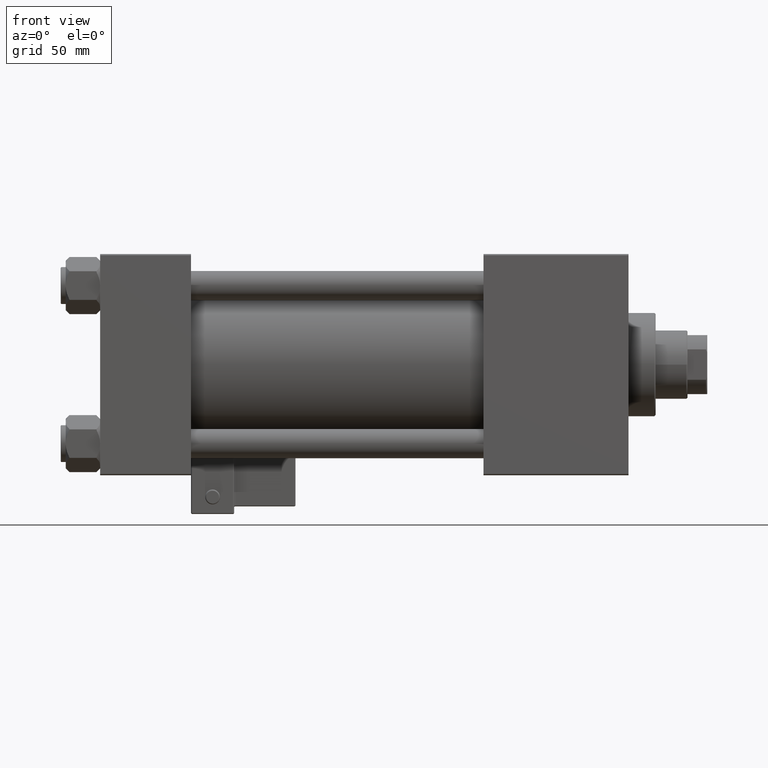
[diagram: clean part render]
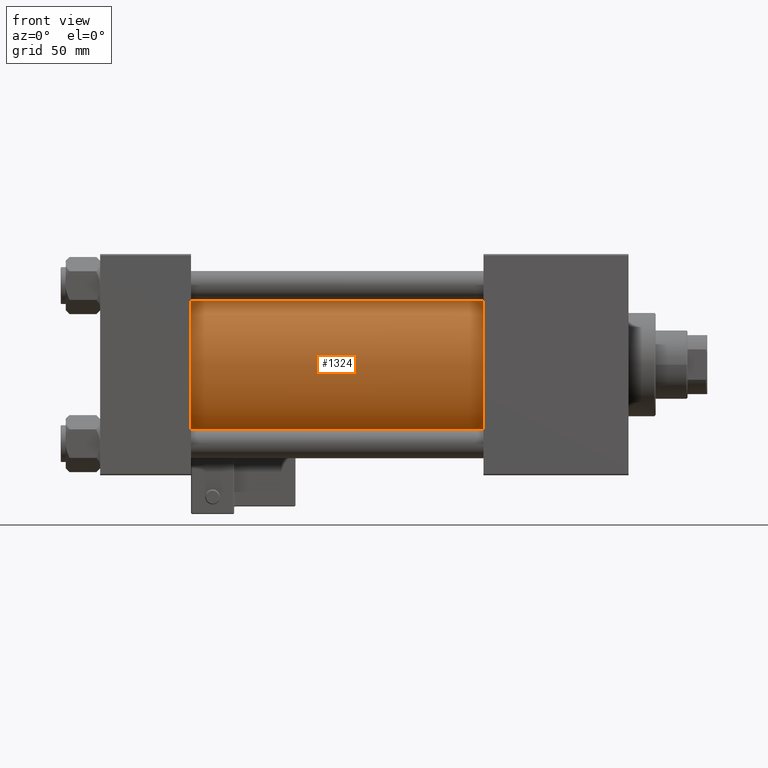
[diagram: same view with one face highlighted and labeled with its STEP entity id]
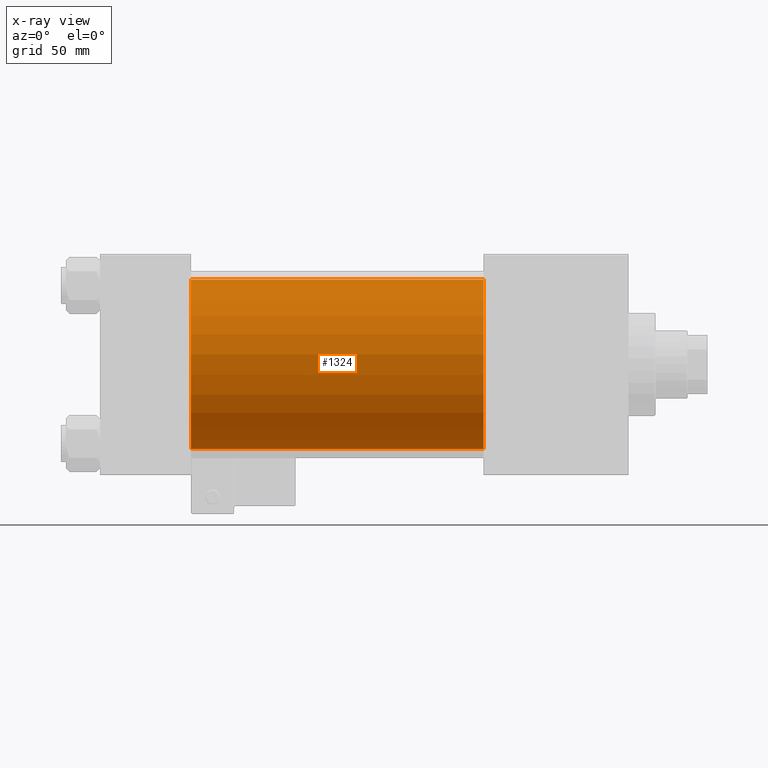
[diagram: x-ray of the same camera — body ghosted, the highlighted face saturated]
A machine part, front view. The second image highlights one B-rep face of the part: STEP entity #1324.
The next image is the same camera in x-ray: the body ghosted, the highlighted face saturated — about 2% of this face is hidden behind the body in this view.
In plain terms, the highlighted cylindrical surface (partial cylindrical patch) has radius 34.5 mm, axis along (-1, -0, -0).
Its self-contained STEP definition (entity closure, byte-faithful):
#437 = VERTEX_POINT ( 'NONE', #23567 ) ;
#1324 = ADVANCED_FACE ( 'NONE', ( #23839 ), #39558, .T. ) ;
#2076 = CARTESIAN_POINT ( 'NONE',  ( 37.00000000000000711, -2.602085213965210642E-15, 0.000000000000000000 ) ) ;
#2797 = EDGE_CURVE ( 'NONE', #32809, #31964, #42986, .T. ) ;
#3059 = ORIENTED_EDGE ( 'NONE', *, *, #9373, .T. ) ;
#7444 = EDGE_CURVE ( 'NONE', #31964, #437, #19164, .T. ) ;
#8799 = ORIENTED_EDGE ( 'NONE', *, *, #2797, .F. ) ;
#9373 = EDGE_CURVE ( 'NONE', #11512, #437, #41465, .T. ) ;
#11201 = ORIENTED_EDGE ( 'NONE', *, *, #37899, .T. ) ;
#11512 = VERTEX_POINT ( 'NONE', #27189 ) ;
#12921 = AXIS2_PLACEMENT_3D ( 'NONE', #2076, #18841, #18579 ) ;
#12966 = EDGE_LOOP ( 'NONE', ( #34380, #8799, #11201, #3059 ) ) ;
#14828 = CARTESIAN_POINT ( 'NONE',  ( 156.0000000000000000, 1.622946243093158675E-15, -34.50000000000000000 ) ) ;
#15614 = CARTESIAN_POINT ( 'NONE',  ( 156.0000000000000000, -2.602085213965210642E-15, 0.000000000000000000 ) ) ;
#16211 = DIRECTION ( 'NONE',  ( -1.000000000000000000, -0.000000000000000000, -0.000000000000000000 ) ) ;
#16285 = VECTOR ( 'NONE', #31881, 1000.000000000000000 ) ;
#18579 = DIRECTION ( 'NONE',  ( 0.000000000000000000, 0.000000000000000000, 1.000000000000000000 ) ) ;
#18841 = DIRECTION ( 'NONE',  ( 1.000000000000000000, -0.000000000000000000, 0.000000000000000000 ) ) ;
#19164 = LINE ( 'NONE', #14828, #16285 ) ;
#19415 = DIRECTION ( 'NONE',  ( 1.000000000000000000, 0.000000000000000000, 0.000000000000000000 ) ) ;
#20520 = CARTESIAN_POINT ( 'NONE',  ( 156.0000000000000000, 1.622946243093158675E-15, -34.50000000000000000 ) ) ;
#23567 = CARTESIAN_POINT ( 'NONE',  ( 37.00000000000000711, 1.622946243093158675E-15, -34.50000000000000000 ) ) ;
#23839 = FACE_OUTER_BOUND ( 'NONE', #12966, .T. ) ;
#24360 = CARTESIAN_POINT ( 'NONE',  ( 156.0000000000000000, -2.602085213965210642E-15, 34.50000000000000000 ) ) ;
#27189 = CARTESIAN_POINT ( 'NONE',  ( 37.00000000000000711, -2.602085213965210642E-15, 34.50000000000000000 ) ) ;
#27544 = DIRECTION ( 'NONE',  ( 0.000000000000000000, 0.000000000000000000, -1.000000000000000000 ) ) ;
#31692 = DIRECTION ( 'NONE',  ( -1.000000000000000000, -0.000000000000000000, -0.000000000000000000 ) ) ;
#31881 = DIRECTION ( 'NONE',  ( -1.000000000000000000, -0.000000000000000000, -0.000000000000000000 ) ) ;
#31962 = CARTESIAN_POINT ( 'NONE',  ( 156.0000000000000000, -2.602085213965210642E-15, 0.000000000000000000 ) ) ;
#31964 = VERTEX_POINT ( 'NONE', #20520 ) ;
#32809 = VERTEX_POINT ( 'NONE', #40612 ) ;
#34380 = ORIENTED_EDGE ( 'NONE', *, *, #7444, .F. ) ;
#35756 = DIRECTION ( 'NONE',  ( 0.000000000000000000, 0.000000000000000000, 1.000000000000000000 ) ) ;
#37596 = LINE ( 'NONE', #24360, #46415 ) ;
#37899 = EDGE_CURVE ( 'NONE', #32809, #11512, #37596, .T. ) ;
#39558 = CYLINDRICAL_SURFACE ( 'NONE', #46347, 34.50000000000000000 ) ;
#40612 = CARTESIAN_POINT ( 'NONE',  ( 156.0000000000000000, -2.602085213965210642E-15, 34.50000000000000000 ) ) ;
#41465 = CIRCLE ( 'NONE', #12921, 34.50000000000000000 ) ;
#42986 = CIRCLE ( 'NONE', #46419, 34.50000000000000000 ) ;
#46347 = AXIS2_PLACEMENT_3D ( 'NONE', #31962, #31692, #35756 ) ;
#46415 = VECTOR ( 'NONE', #16211, 1000.000000000000000 ) ;
#46419 = AXIS2_PLACEMENT_3D ( 'NONE', #15614, #19415, #27544 ) ;